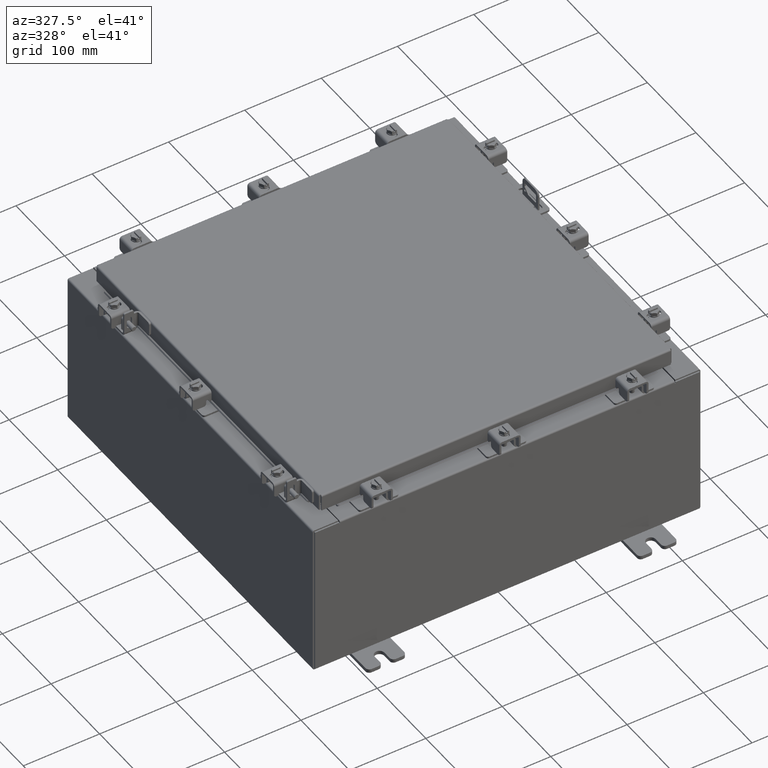
[diagram: clean part render]
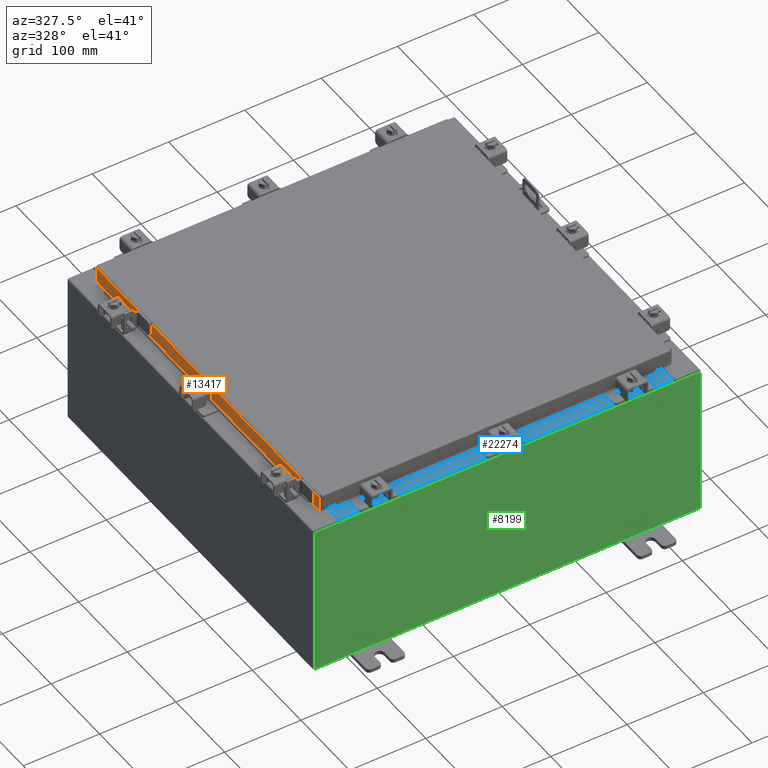
[diagram: same view with three faces highlighted in distinct colors, each labeled with its STEP entity id]
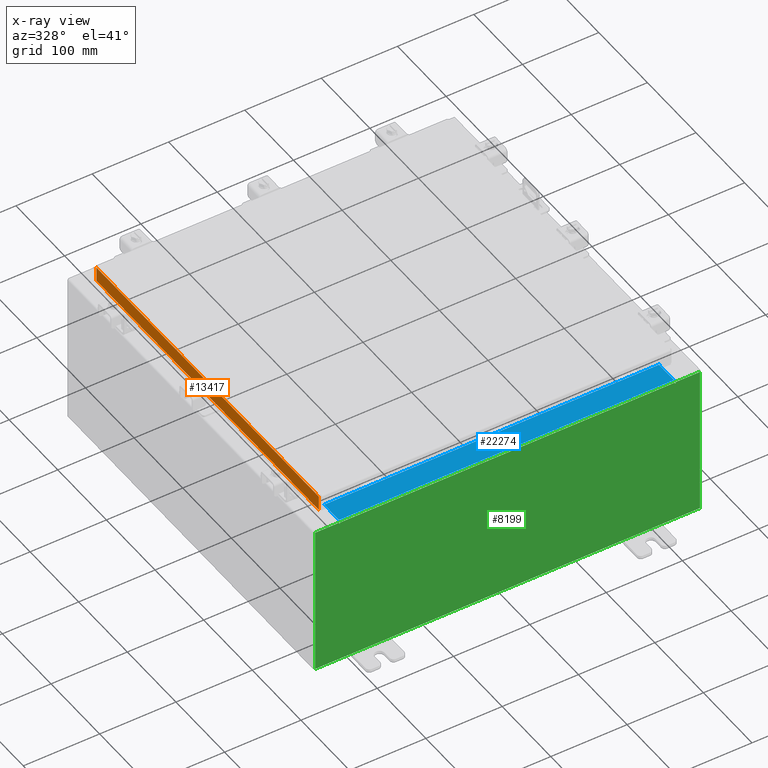
[diagram: x-ray of the same camera — body ghosted, the three highlighted faces saturated]
A machine part, auxiliary view with three faces highlighted in distinct colors.
The next image is the same camera in x-ray (body ghosted, the three faces saturated) — at least one of them is partly hidden behind the body in this view.
Their STEP definitions:

[orange] entity #13417 — the highlighted planar face has unit normal (1, 0, -0).
#24 = FACE_OUTER_BOUND ( 'NONE', #1949, .T. ) ;
#312 = EDGE_CURVE ( 'NONE', #21309, #8525, #16321, .T. ) ;
#1020 = EDGE_CURVE ( 'NONE', #1843, #8525, #18178, .T. ) ;
#1666 = VECTOR ( 'NONE', #7556, 39.37007874015748100 ) ;
#1843 = VERTEX_POINT ( 'NONE', #8339 ) ;
#1848 = CARTESIAN_POINT ( 'NONE',  ( -9.093999999999997600, -8.255157864376261800, -0.8500000000000020900 ) ) ;
#1949 = EDGE_LOOP ( 'NONE', ( #3183, #9724, #5846, #12732, #13680, #21859 ) ) ;
#3183 = ORIENTED_EDGE ( 'NONE', *, *, #11146, .F. ) ;
#3968 = AXIS2_PLACEMENT_3D ( 'NONE', #19245, #8790, #20967 ) ;
#4022 = VERTEX_POINT ( 'NONE', #6704 ) ;
#4462 = DIRECTION ( 'NONE',  ( -2.818880942772360500E-015, 6.982962677686265900E-015, -1.000000000000000000 ) ) ;
#4609 = LINE ( 'NONE', #12399, #4890 ) ;
#4661 = CARTESIAN_POINT ( 'NONE',  ( -9.093999999999999400, -9.093999999999999400, -0.08770000000000026400 ) ) ;
#4890 = VECTOR ( 'NONE', #14278, 39.37007874015748100 ) ;
#5261 = EDGE_CURVE ( 'NONE', #4022, #9370, #8669, .T. ) ;
#5285 = PLANE ( 'NONE',  #3968 ) ;
#5846 = ORIENTED_EDGE ( 'NONE', *, *, #312, .F. ) ;
#6161 = CARTESIAN_POINT ( 'NONE',  ( -9.094000000000001200, -9.093999999999999400, -0.8499999999999999800 ) ) ;
#6704 = CARTESIAN_POINT ( 'NONE',  ( -9.094000000000001200, -9.005157864376261800, -0.8499999999999999800 ) ) ;
#7556 = DIRECTION ( 'NONE',  ( -0.0000000000000000000, 1.000000000000000000, -0.0000000000000000000 ) ) ;
#8339 = CARTESIAN_POINT ( 'NONE',  ( -9.093999999999999400, 9.005157864376267100, -0.08770000000000136000 ) ) ;
#8525 = VERTEX_POINT ( 'NONE', #17387 ) ;
#8669 = LINE ( 'NONE', #18431, #17422 ) ;
#8790 = DIRECTION ( 'NONE',  ( 1.000000000000000000, 3.387180227794634300E-031, -2.818880942772360500E-015 ) ) ;
#9370 = VERTEX_POINT ( 'NONE', #1848 ) ;
#9724 = ORIENTED_EDGE ( 'NONE', *, *, #1020, .T. ) ;
#10371 = LINE ( 'NONE', #19769, #1666 ) ;
#11146 = EDGE_CURVE ( 'NONE', #1843, #15543, #11215, .T. ) ;
#11215 = LINE ( 'NONE', #4661, #15931 ) ;
#12381 = DIRECTION ( 'NONE',  ( 4.379057701015053300E-047, 1.000000000000000000, 1.201604571657912400E-016 ) ) ;
#12399 = CARTESIAN_POINT ( 'NONE',  ( -9.093999999999999400, -9.005157864376267100, -0.07470000000000015500 ) ) ;
#12732 = ORIENTED_EDGE ( 'NONE', *, *, #21826, .F. ) ;
#13150 = DIRECTION ( 'NONE',  ( 4.379057701015053300E-047, 1.000000000000000000, 1.201604571657912400E-016 ) ) ;
#13390 = CARTESIAN_POINT ( 'NONE',  ( -9.093999999999997600, 8.255157864376267100, -0.8500000000000020900 ) ) ;
#13417 = ADVANCED_FACE ( 'NONE', ( #24 ), #5285, .F. ) ;
#13559 = VECTOR ( 'NONE', #4462, 39.37007874015748100 ) ;
#13680 = ORIENTED_EDGE ( 'NONE', *, *, #5261, .F. ) ;
#14278 = DIRECTION ( 'NONE',  ( -2.818880942772360500E-015, 6.982962677686265900E-015, -1.000000000000000000 ) ) ;
#15543 = VERTEX_POINT ( 'NONE', #17769 ) ;
#15801 = VECTOR ( 'NONE', #12381, 39.37007874015748100 ) ;
#15931 = VECTOR ( 'NONE', #16969, 39.37007874015748100 ) ;
#16173 = CARTESIAN_POINT ( 'NONE',  ( -9.093999999999999400, 9.005157864376267100, 8.851187499472213200E-014 ) ) ;
#16321 = LINE ( 'NONE', #6161, #15801 ) ;
#16969 = DIRECTION ( 'NONE',  ( 5.080770341691952100E-031, -1.000000000000000000, 6.008022858289562200E-017 ) ) ;
#17387 = CARTESIAN_POINT ( 'NONE',  ( -9.094000000000001200, 9.005157864376274200, -0.8499999999999977600 ) ) ;
#17422 = VECTOR ( 'NONE', #13150, 39.37007874015748100 ) ;
#17542 = EDGE_CURVE ( 'NONE', #15543, #4022, #4609, .T. ) ;
#17769 = CARTESIAN_POINT ( 'NONE',  ( -9.093999999999999400, -9.005157864376268900, -0.08770000000000026400 ) ) ;
#18178 = LINE ( 'NONE', #16173, #13559 ) ;
#18431 = CARTESIAN_POINT ( 'NONE',  ( -9.094000000000001200, -9.093999999999999400, -0.8499999999999999800 ) ) ;
#19245 = CARTESIAN_POINT ( 'NONE',  ( -9.093999999999999400, 0.0000000000000000000, 2.622574073917692700E-014 ) ) ;
#19769 = CARTESIAN_POINT ( 'NONE',  ( -9.093999999999997600, -8.255157864376263500, -0.8500000000000020900 ) ) ;
#20967 = DIRECTION ( 'NONE',  ( -2.818880942772360500E-015, 0.0000000000000000000, -1.000000000000000000 ) ) ;
#21309 = VERTEX_POINT ( 'NONE', #13390 ) ;
#21826 = EDGE_CURVE ( 'NONE', #9370, #21309, #10371, .T. ) ;
#21859 = ORIENTED_EDGE ( 'NONE', *, *, #17542, .F. ) ;

[blue] entity #22274 — the highlighted planar face has unit normal (-0, -0, 1).
#2438 = DIRECTION ( 'NONE',  ( 0.0000000000000000000, 3.566381192773190000E-015, 1.000000000000000000 ) ) ;
#2474 = AXIS2_PLACEMENT_3D ( 'NONE', #12884, #2438, #14650 ) ;
#3234 = ORIENTED_EDGE ( 'NONE', *, *, #19135, .T. ) ;
#4298 = EDGE_CURVE ( 'NONE', #6014, #7961, #12237, .T. ) ;
#6014 = VERTEX_POINT ( 'NONE', #21005 ) ;
#6583 = CARTESIAN_POINT ( 'NONE',  ( -2.773851121247567100E-018, -0.08770000000000000000, 4.000000000000000900 ) ) ;
#6635 = VECTOR ( 'NONE', #20770, 39.37007874015748100 ) ;
#6837 = CARTESIAN_POINT ( 'NONE',  ( -8.637200000000000000, -0.07469999999999973900, 4.000000000000000000 ) ) ;
#7171 = LINE ( 'NONE', #6837, #6635 ) ;
#7613 = LINE ( 'NONE', #8578, #17479 ) ;
#7856 = VERTEX_POINT ( 'NONE', #20809 ) ;
#7961 = VERTEX_POINT ( 'NONE', #8837 ) ;
#8578 = CARTESIAN_POINT ( 'NONE',  ( 8.637200000000000000, -1.287299999999999900, 4.000000000000003600 ) ) ;
#8837 = CARTESIAN_POINT ( 'NONE',  ( 8.637200000000000000, -1.287299999999999900, 4.000000000000004400 ) ) ;
#9027 = CARTESIAN_POINT ( 'NONE',  ( 8.637200000000000000, -1.300299999999999800, 4.000000000000004400 ) ) ;
#9382 = PLANE ( 'NONE',  #2474 ) ;
#10468 = EDGE_CURVE ( 'NONE', #7856, #17536, #7171, .T. ) ;
#12237 = LINE ( 'NONE', #9027, #16361 ) ;
#12513 = DIRECTION ( 'NONE',  ( -0.0000000000000000000, -1.000000000000000000, 3.566381192773190000E-015 ) ) ;
#12615 = VECTOR ( 'NONE', #22259, 39.37007874015748100 ) ;
#12884 = CARTESIAN_POINT ( 'NONE',  ( 0.0000000000000000000, 1.425992975200418500E-014, 4.000000000000000000 ) ) ;
#13052 = ORIENTED_EDGE ( 'NONE', *, *, #16271, .F. ) ;
#13412 = ORIENTED_EDGE ( 'NONE', *, *, #10468, .F. ) ;
#14412 = ORIENTED_EDGE ( 'NONE', *, *, #4298, .F. ) ;
#14650 = DIRECTION ( 'NONE',  ( 0.0000000000000000000, -1.000000000000000000, 3.566381192773190000E-015 ) ) ;
#14951 = EDGE_LOOP ( 'NONE', ( #13412, #13052, #14412, #3234 ) ) ;
#15578 = FACE_OUTER_BOUND ( 'NONE', #14951, .T. ) ;
#16271 = EDGE_CURVE ( 'NONE', #7961, #7856, #7613, .T. ) ;
#16361 = VECTOR ( 'NONE', #12513, 39.37007874015748100 ) ;
#17303 = LINE ( 'NONE', #6583, #12615 ) ;
#17479 = VECTOR ( 'NONE', #22512, 39.37007874015748100 ) ;
#17536 = VERTEX_POINT ( 'NONE', #19445 ) ;
#19135 = EDGE_CURVE ( 'NONE', #6014, #17536, #17303, .T. ) ;
#19445 = CARTESIAN_POINT ( 'NONE',  ( -8.637200000000000000, -0.08770000000000000000, 4.000000000000000000 ) ) ;
#20770 = DIRECTION ( 'NONE',  ( -0.0000000000000000000, 1.000000000000000000, -3.566381192773190000E-015 ) ) ;
#20809 = CARTESIAN_POINT ( 'NONE',  ( -8.637200000000000000, -1.287299999999999200, 4.000000000000004400 ) ) ;
#21005 = CARTESIAN_POINT ( 'NONE',  ( 8.637200000000000000, -0.08769999999999965300, 4.000000000000000000 ) ) ;
#22259 = DIRECTION ( 'NONE',  ( -1.000000000000000000, 3.162886113166609200E-017, -1.128005754888089100E-031 ) ) ;
#22274 = ADVANCED_FACE ( 'NONE', ( #15578 ), #9382, .T. ) ;
#22512 = DIRECTION ( 'NONE',  ( -1.000000000000000000, 0.0000000000000000000, 0.0000000000000000000 ) ) ;

[green] entity #8199 — the highlighted planar face has unit normal (-0, 1, -0).
#76 = LINE ( 'NONE', #728, #18068 ) ;
#165 = CARTESIAN_POINT ( 'NONE',  ( -8.637199999999996400, -0.0000000000000000000, 0.0000000000000000000 ) ) ;
#441 = AXIS2_PLACEMENT_3D ( 'NONE', #5335, #17566, #7100 ) ;
#728 = CARTESIAN_POINT ( 'NONE',  ( -9.925300000000000000, 0.0000000000000000000, 3.925299999999999600 ) ) ;
#906 = DIRECTION ( 'NONE',  ( 0.0000000000000000000, -0.0000000000000000000, -1.000000000000000000 ) ) ;
#1338 = VERTEX_POINT ( 'NONE', #18465 ) ;
#1395 = CARTESIAN_POINT ( 'NONE',  ( 9.925300000000000000, 0.0000000000000000000, 3.925299999999999600 ) ) ;
#1451 = CARTESIAN_POINT ( 'NONE',  ( 8.637200000000000000, 0.0000000000000000000, 3.912299999999999700 ) ) ;
#1556 = AXIS2_PLACEMENT_3D ( 'NONE', #21747, #11294, #906 ) ;
#1564 = DIRECTION ( 'NONE',  ( 1.000000000000000000, 0.0000000000000000000, 0.0000000000000000000 ) ) ;
#1856 = VECTOR ( 'NONE', #15776, 39.37007874015748100 ) ;
#1998 = LINE ( 'NONE', #165, #6071 ) ;
#2008 = ORIENTED_EDGE ( 'NONE', *, *, #18700, .T. ) ;
#2828 = VECTOR ( 'NONE', #12069, 39.37007874015748100 ) ;
#3400 = CARTESIAN_POINT ( 'NONE',  ( -9.925300000000000000, 0.0000000000000000000, -3.925299999999999600 ) ) ;
#4165 = CARTESIAN_POINT ( 'NONE',  ( 8.637200000000000000, 0.0000000000000000000, 0.0000000000000000000 ) ) ;
#4613 = ORIENTED_EDGE ( 'NONE', *, *, #17508, .T. ) ;
#5072 = EDGE_CURVE ( 'NONE', #11868, #14306, #20675, .T. ) ;
#5087 = LINE ( 'NONE', #11982, #19540 ) ;
#5164 = VECTOR ( 'NONE', #10652, 39.37007874015748100 ) ;
#5335 = CARTESIAN_POINT ( 'NONE',  ( -8.655874999999996400, 0.0000000000000000000, 3.874949999999999700 ) ) ;
#5676 = CARTESIAN_POINT ( 'NONE',  ( 8.674550000000000000, 0.0000000000000000000, 3.874949999999999700 ) ) ;
#5679 = VERTEX_POINT ( 'NONE', #9707 ) ;
#6071 = VECTOR ( 'NONE', #8855, 39.37007874015748100 ) ;
#6405 = EDGE_CURVE ( 'NONE', #11868, #11921, #5087, .T. ) ;
#6785 = VECTOR ( 'NONE', #17756, 39.37007874015748100 ) ;
#7100 = DIRECTION ( 'NONE',  ( 0.0000000000000000000, 0.0000000000000000000, -1.000000000000000000 ) ) ;
#7155 = VERTEX_POINT ( 'NONE', #12270 ) ;
#7163 = ORIENTED_EDGE ( 'NONE', *, *, #17794, .F. ) ;
#7293 = VERTEX_POINT ( 'NONE', #19581 ) ;
#7637 = EDGE_CURVE ( 'NONE', #14306, #21914, #16802, .T. ) ;
#8094 = CARTESIAN_POINT ( 'NONE',  ( 9.925300000000000000, 0.0000000000000000000, 3.925299999999999600 ) ) ;
#8126 = VERTEX_POINT ( 'NONE', #14619 ) ;
#8154 = DIRECTION ( 'NONE',  ( -0.0000000000000000000, 1.000000000000000000, -0.0000000000000000000 ) ) ;
#8199 = ADVANCED_FACE ( 'NONE', ( #10983 ), #9557, .F. ) ;
#8855 = DIRECTION ( 'NONE',  ( 0.0000000000000000000, 0.0000000000000000000, -1.000000000000000000 ) ) ;
#9557 = PLANE ( 'NONE',  #1556 ) ;
#9592 = CIRCLE ( 'NONE', #441, 0.01867500000000003900 ) ;
#9707 = CARTESIAN_POINT ( 'NONE',  ( -8.637199999999996400, -0.0000000000000000000, 3.874949999999999700 ) ) ;
#9721 = EDGE_CURVE ( 'NONE', #11921, #7293, #20524, .T. ) ;
#10001 = EDGE_CURVE ( 'NONE', #8126, #5679, #1998, .T. ) ;
#10477 = ORIENTED_EDGE ( 'NONE', *, *, #6405, .T. ) ;
#10592 = LINE ( 'NONE', #4165, #19336 ) ;
#10652 = DIRECTION ( 'NONE',  ( 1.000000000000000000, 0.0000000000000000000, 0.0000000000000000000 ) ) ;
#10983 = FACE_OUTER_BOUND ( 'NONE', #13098, .T. ) ;
#11040 = DIRECTION ( 'NONE',  ( 1.000000000000000000, 0.0000000000000000000, 0.0000000000000000000 ) ) ;
#11292 = EDGE_CURVE ( 'NONE', #5679, #1338, #9592, .T. ) ;
#11294 = DIRECTION ( 'NONE',  ( 0.0000000000000000000, -1.000000000000000000, 0.0000000000000000000 ) ) ;
#11619 = ORIENTED_EDGE ( 'NONE', *, *, #5072, .F. ) ;
#11868 = VERTEX_POINT ( 'NONE', #16881 ) ;
#11921 = VERTEX_POINT ( 'NONE', #1395 ) ;
#11982 = CARTESIAN_POINT ( 'NONE',  ( -9.925300000000000000, 0.0000000000000000000, 3.925299999999999600 ) ) ;
#12069 = DIRECTION ( 'NONE',  ( -1.000000000000000000, -0.0000000000000000000, -0.0000000000000000000 ) ) ;
#12270 = CARTESIAN_POINT ( 'NONE',  ( -9.925300000000000000, 0.0000000000000000000, -3.925299999999999600 ) ) ;
#12290 = ORIENTED_EDGE ( 'NONE', *, *, #7637, .F. ) ;
#12682 = VERTEX_POINT ( 'NONE', #15494 ) ;
#13098 = EDGE_LOOP ( 'NONE', ( #17523, #21814, #19712, #20974, #7163, #12290, #11619, #10477, #18536, #2008, #21228, #4613 ) ) ;
#13212 = CARTESIAN_POINT ( 'NONE',  ( 8.637200000000000000, 0.0000000000000000000, 3.874949999999999700 ) ) ;
#13845 = CARTESIAN_POINT ( 'NONE',  ( -8.674549999999996400, 0.0000000000000000000, 3.925299999999999600 ) ) ;
#14306 = VERTEX_POINT ( 'NONE', #5676 ) ;
#14444 = EDGE_CURVE ( 'NONE', #7155, #12682, #76, .T. ) ;
#14547 = AXIS2_PLACEMENT_3D ( 'NONE', #18621, #8154, #20344 ) ;
#14619 = CARTESIAN_POINT ( 'NONE',  ( -8.637199999999996400, 1.024442997624098700E-016, 3.912299999999999700 ) ) ;
#15369 = VECTOR ( 'NONE', #22027, 39.37007874015748100 ) ;
#15494 = CARTESIAN_POINT ( 'NONE',  ( -9.925300000000000000, 0.0000000000000000000, 3.925299999999999600 ) ) ;
#15776 = DIRECTION ( 'NONE',  ( 0.0000000000000000000, 0.0000000000000000000, 1.000000000000000000 ) ) ;
#15806 = LINE ( 'NONE', #20924, #1856 ) ;
#16802 = CIRCLE ( 'NONE', #14547, 0.01867500000000003900 ) ;
#16848 = DIRECTION ( 'NONE',  ( -0.0000000000000000000, -0.0000000000000000000, 1.000000000000000000 ) ) ;
#16881 = CARTESIAN_POINT ( 'NONE',  ( 8.674550000000001800, 0.0000000000000000000, 3.925299999999999600 ) ) ;
#17508 = EDGE_CURVE ( 'NONE', #12682, #21561, #19097, .T. ) ;
#17523 = ORIENTED_EDGE ( 'NONE', *, *, #18258, .F. ) ;
#17566 = DIRECTION ( 'NONE',  ( -0.0000000000000000000, 1.000000000000000000, -0.0000000000000000000 ) ) ;
#17756 = DIRECTION ( 'NONE',  ( -6.510859170600007400E-014, 0.0000000000000000000, -1.000000000000000000 ) ) ;
#17786 = VECTOR ( 'NONE', #11040, 39.37007874015748100 ) ;
#17794 = EDGE_CURVE ( 'NONE', #21914, #19937, #10592, .T. ) ;
#18068 = VECTOR ( 'NONE', #16848, 39.37007874015748100 ) ;
#18258 = EDGE_CURVE ( 'NONE', #1338, #21561, #15806, .T. ) ;
#18465 = CARTESIAN_POINT ( 'NONE',  ( -8.674549999999996400, 0.0000000000000000000, 3.874949999999999700 ) ) ;
#18536 = ORIENTED_EDGE ( 'NONE', *, *, #9721, .T. ) ;
#18621 = CARTESIAN_POINT ( 'NONE',  ( 8.655875000000000000, 0.0000000000000000000, 3.874949999999999700 ) ) ;
#18700 = EDGE_CURVE ( 'NONE', #7293, #7155, #20833, .T. ) ;
#19097 = LINE ( 'NONE', #19354, #5164 ) ;
#19336 = VECTOR ( 'NONE', #19957, 39.37007874015748100 ) ;
#19354 = CARTESIAN_POINT ( 'NONE',  ( -9.925300000000000000, 0.0000000000000000000, 3.925299999999999600 ) ) ;
#19540 = VECTOR ( 'NONE', #1564, 39.37007874015748100 ) ;
#19581 = CARTESIAN_POINT ( 'NONE',  ( 9.925300000000000000, 0.0000000000000000000, -3.925299999999999600 ) ) ;
#19700 = CARTESIAN_POINT ( 'NONE',  ( -8.637200000000000000, 1.024442997624098700E-016, 3.912299999999999700 ) ) ;
#19712 = ORIENTED_EDGE ( 'NONE', *, *, #10001, .F. ) ;
#19937 = VERTEX_POINT ( 'NONE', #1451 ) ;
#19957 = DIRECTION ( 'NONE',  ( 0.0000000000000000000, 0.0000000000000000000, 1.000000000000000000 ) ) ;
#20256 = EDGE_CURVE ( 'NONE', #8126, #19937, #22411, .T. ) ;
#20344 = DIRECTION ( 'NONE',  ( 0.0000000000000000000, 0.0000000000000000000, -1.000000000000000000 ) ) ;
#20524 = LINE ( 'NONE', #8094, #15369 ) ;
#20675 = LINE ( 'NONE', #21237, #6785 ) ;
#20833 = LINE ( 'NONE', #3400, #2828 ) ;
#20924 = CARTESIAN_POINT ( 'NONE',  ( -8.674549999999996400, -0.0000000000000000000, 0.0000000000000000000 ) ) ;
#20974 = ORIENTED_EDGE ( 'NONE', *, *, #20256, .T. ) ;
#21228 = ORIENTED_EDGE ( 'NONE', *, *, #14444, .T. ) ;
#21237 = CARTESIAN_POINT ( 'NONE',  ( 8.674549999999747700, -0.0000000000000000000, -5.647877341832665300E-013 ) ) ;
#21561 = VERTEX_POINT ( 'NONE', #13845 ) ;
#21747 = CARTESIAN_POINT ( 'NONE',  ( 0.0000000000000000000, 0.0000000000000000000, 0.0000000000000000000 ) ) ;
#21814 = ORIENTED_EDGE ( 'NONE', *, *, #11292, .F. ) ;
#21914 = VERTEX_POINT ( 'NONE', #13212 ) ;
#22027 = DIRECTION ( 'NONE',  ( 0.0000000000000000000, 0.0000000000000000000, -1.000000000000000000 ) ) ;
#22411 = LINE ( 'NONE', #19700, #17786 ) ;